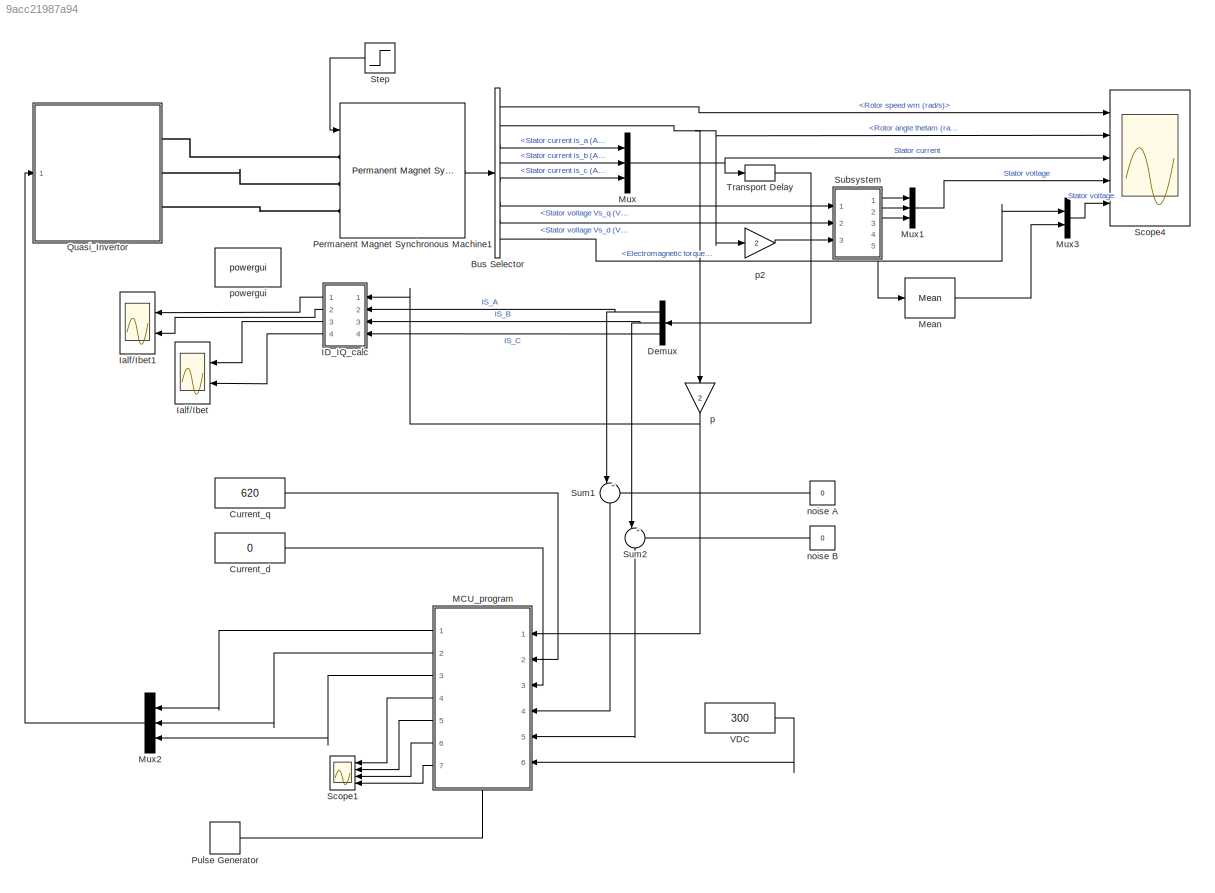
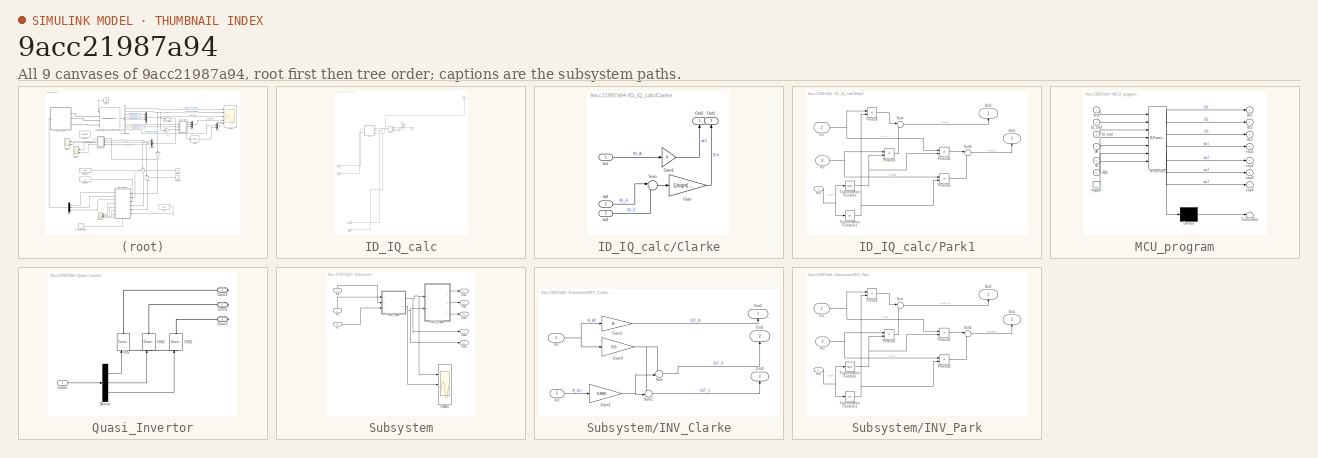
[diagram: thumbnail index - all 9 canvases of the model, root first then tree order]
MODEL slx_9acc21987a94
KIND model
CONFIG AbsTol = auto
CONFIG EnableMultiTasking = on
CONFIG FixedStep = auto
CONFIG MaxStep = 1e-6
CONFIG MinStep = auto
CONFIG RelTol = 5e-4
CONFIG SampleTimeConstraint = Unconstrained
CONFIG SolverName = ode23tb
CONFIG StartTime = 0.0
CONFIG StopTime = 30
BLOCK [BusSelector] Bus Selector
  OutputSignals = Rotor speed wm (rad/s),Rotor angle thetam (rad),Stator current is_a (A),Stator current is_b (A),Stator current is_c (A),Stator voltage Vs_q (V),Stator voltage Vs_d (V),Electromagnetic torque Te (N*m)
  Ports = [1, 8]
BLOCK [Constant] Current_d
  Value = 0
BLOCK [Constant] Current_q
  Value = 620
BLOCK [Demux] Demux
  NameLocation = top
  Outputs = 3
  Ports = [1, 3]
BLOCK [SubSystem] ID_IQ_calc
  NameLocation = top
  Ports = [4, 4]
  RequestExecContextInheritance = off
BLOCK [SubSystem] ID_IQ_calc/Clarke
  Ports = [3, 2]
  RequestExecContextInheritance = off
BLOCK [Gain] ID_IQ_calc/Clarke/Gain
  Gain = 1/sqrt(3)
BLOCK [Gain] ID_IQ_calc/Clarke/Gain1
BLOCK [Inport] ID_IQ_calc/Clarke/In1
  IconDisplay = Signal name
BLOCK [Inport] ID_IQ_calc/Clarke/In2
  IconDisplay = Signal name
  Port = 2
BLOCK [Inport] ID_IQ_calc/Clarke/In3
  IconDisplay = Signal name
  Port = 3
BLOCK [Outport] ID_IQ_calc/Clarke/Out1
  IconDisplay = Signal name
  NameLocation = right
  Port = 2
  VectorParamsAs1DForOutWhenUnconnected = off
BLOCK [Outport] ID_IQ_calc/Clarke/Out2
  IconDisplay = Signal name
  NameLocation = right
  VectorParamsAs1DForOutWhenUnconnected = off
BLOCK [Sum] ID_IQ_calc/Clarke/Sum
  Inputs = |+-
  Ports = [2, 1]
BLOCK [Inport] ID_IQ_calc/In1
  NameLocation = right
BLOCK [Inport] ID_IQ_calc/In2
  NameLocation = right
  Port = 2
BLOCK [Inport] ID_IQ_calc/In3
  NameLocation = right
  Port = 3
BLOCK [Inport] ID_IQ_calc/In4
  NameLocation = right
  Port = 4
BLOCK [Outport] ID_IQ_calc/Out1
  VectorParamsAs1DForOutWhenUnconnected = off
BLOCK [Outport] ID_IQ_calc/Out2
  Port = 2
  VectorParamsAs1DForOutWhenUnconnected = off
BLOCK [Outport] ID_IQ_calc/Out3
  Port = 3
  VectorParamsAs1DForOutWhenUnconnected = off
BLOCK [Outport] ID_IQ_calc/Out4
  Port = 4
  VectorParamsAs1DForOutWhenUnconnected = off
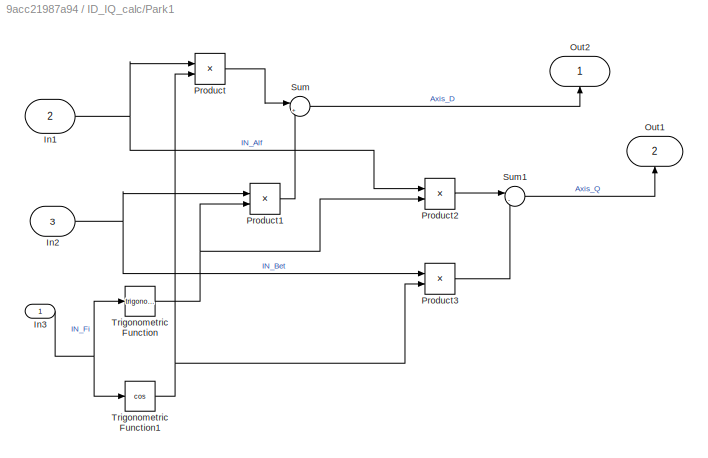
BLOCK [SubSystem] ID_IQ_calc/Park1
  NameLocation = top
  Ports = [3, 2]
  RequestExecContextInheritance = off
BLOCK [Inport] ID_IQ_calc/Park1/In1
  IconDisplay = Signal name
  Port = 2
BLOCK [Inport] ID_IQ_calc/Park1/In2
  IconDisplay = Signal name
  Port = 3
BLOCK [Inport] ID_IQ_calc/Park1/In3
  IconDisplay = Signal name
BLOCK [Outport] ID_IQ_calc/Park1/Out1
  IconDisplay = Signal name
  NameLocation = right
  Port = 2
  VectorParamsAs1DForOutWhenUnconnected = off
BLOCK [Outport] ID_IQ_calc/Park1/Out2
  IconDisplay = Signal name
  NameLocation = right
  VectorParamsAs1DForOutWhenUnconnected = off
BLOCK [Product] ID_IQ_calc/Park1/Product
  Ports = [2, 1]
BLOCK [Product] ID_IQ_calc/Park1/Product1
  Ports = [2, 1]
BLOCK [Product] ID_IQ_calc/Park1/Product2
  Ports = [2, 1]
BLOCK [Product] ID_IQ_calc/Park1/Product3
  Ports = [2, 1]
BLOCK [Sum] ID_IQ_calc/Park1/Sum
  Inputs = |++
  Ports = [2, 1]
BLOCK [Sum] ID_IQ_calc/Park1/Sum1
  Inputs = |-+
  Ports = [2, 1]
BLOCK [Trigonometry] ID_IQ_calc/Park1/Trigonometric Function
  Ports = [1, 1]
BLOCK [Trigonometry] ID_IQ_calc/Park1/Trigonometric Function1
  Operator = cos
  Ports = [1, 1]
BLOCK [Scope] Ialf//Ibet
  Floating = off
  NameLocation = top
  NumInputPorts = 2
  Ports = [2]
  ScopeSpecificationString = Simulink.scopes.TimeScopeBlockCfg('CurrentConfiguration', extmgr.ConfigurationSet(extmgr.Configuration('Core','General UI',true,'FigureColor',[1 1 1]),extmgr.Configuration('Core','Source UI',true),extmgr.Configuration('Sources','WiredSimulink',true,'DataLoggingVariableName','ScopeData1','DataLoggingSaveFormat','StructureWithTime','DataLoggingDecimation','1','DataLoggingDecimateData',true),extmgr.C...<+4326ch>
BLOCK [Scope] Ialf//Ibet1
  Floating = off
  NameLocation = top
  NumInputPorts = 2
  Ports = [2]
  ScopeSpecificationString = Simulink.scopes.TimeScopeBlockCfg('CurrentConfiguration', extmgr.ConfigurationSet(extmgr.Configuration('Core','General UI',true,'FigureColor',[1 1 1]),extmgr.Configuration('Core','Source UI',true),extmgr.Configuration('Sources','WiredSimulink',true,'DataLoggingVariableName','ScopeData1','DataLoggingSaveFormat','StructureWithTime','DataLoggingDecimation','1','DataLoggingDecimateData',true),extmgr.C...<+4329ch>
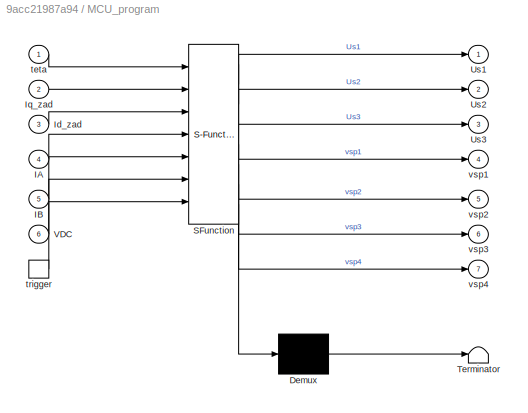
BLOCK [SubSystem] MCU_program
  ErrorFcn = Stateflow.Translate.translate
  NameLocation = top
  PermitHierarchicalResolution = ExplicitOnly
  Ports = [6, 7, 0, 1]
  RequestExecContextInheritance = off
  SFBlockType = MATLAB Function
  TreatAsAtomicUnit = on
BLOCK [Demux] MCU_program/ Demux 
  Outputs = 1
  Ports = [1, 1]
BLOCK [S-Function] MCU_program/ SFunction 
  EnableBusSupport = on
  FunctionName = sf_sfun
  PortCounts = [7 8]
  Ports = [7, 8]
  SFcnIsStateOwnerBlock = off
  SFunctionDeploymentMode = off
  Tag = Stateflow S-Function 3
BLOCK [Terminator] MCU_program/ Terminator 
BLOCK [Inport] MCU_program/IA
  Port = 4
BLOCK [Inport] MCU_program/IB
  Port = 5
BLOCK [Inport] MCU_program/Id_zad
  Port = 3
BLOCK [Inport] MCU_program/Iq_zad
  Port = 2
BLOCK [Outport] MCU_program/Us1
  VectorParamsAs1DForOutWhenUnconnected = off
BLOCK [Outport] MCU_program/Us2
  Port = 2
  VectorParamsAs1DForOutWhenUnconnected = off
BLOCK [Outport] MCU_program/Us3
  Port = 3
  VectorParamsAs1DForOutWhenUnconnected = off
BLOCK [Inport] MCU_program/VDC
  Port = 6
BLOCK [Inport] MCU_program/teta
BLOCK [TriggerPort] MCU_program/trigger
  Ports = [0, 1]
  ShowOutputPort = on
  StatesWhenEnabling = held
  VariantControl = (inherit)
BLOCK [Outport] MCU_program/vsp1
  Port = 4
  VectorParamsAs1DForOutWhenUnconnected = off
BLOCK [Outport] MCU_program/vsp2
  Port = 5
  VectorParamsAs1DForOutWhenUnconnected = off
BLOCK [Outport] MCU_program/vsp3
  Port = 6
  VectorParamsAs1DForOutWhenUnconnected = off
BLOCK [Outport] MCU_program/vsp4
  Port = 7
  VectorParamsAs1DForOutWhenUnconnected = off
BLOCK [Reference] Mean  REF=spsMeanLib/Mean
  Ports = [1, 1]
  SourceBlock = spsMeanLib/Mean
  SourceProductBaseCode = PS
  SourceType = Mean
BLOCK [Mux] Mux
  DisplayOption = bar
  Inputs = 3
  Ports = [3, 1]
BLOCK [Mux] Mux1
  DisplayOption = bar
  Inputs = 3
  Ports = [3, 1]
BLOCK [Mux] Mux2
  DisplayOption = bar
  Inputs = 3
  NameLocation = top
  Ports = [3, 1]
BLOCK [Mux] Mux3
  DisplayOption = bar
  Inputs = 2
  Ports = [2, 1]
BLOCK [Reference] Permanent Magnet Synchronous Machine1  REF=spsPermanentMagnetSynchronousMachineLib/Permanent Magnet
Synchronous Machine
  Ports = [1, 1, 0, 0, 0, 3]
  SourceBlock = spsPermanentMagnetSynchronousMachineLib/Permanent Magnet\nSynchronous Machine
  SourceProductBaseCode = PS
  SourceType = Permanent Magnet Synchronous Machine
BLOCK [DiscretePulseGenerator] Pulse Generator
  Period = 50e-6
  Ports = [0, 1]
  PulseType = Time based
  PulseWidth = 10
BLOCK [SubSystem] Quasi_Invertor
  Ports = [1, 0, 0, 0, 0, 0, 3]
  RequestExecContextInheritance = off
BLOCK [Reference] Quasi_Invertor/CVS  REF=spsControlledVoltageSourceLib/Controlled Voltage Source
  NameLocation = right
  Ports = [1, 0, 0, 0, 0, 1, 1]
  SourceBlock = spsControlledVoltageSourceLib/Controlled Voltage Source
  SourceProductBaseCode = PS
  SourceType = Controlled Voltage Source
BLOCK [Reference] Quasi_Invertor/CVS1  REF=spsControlledVoltageSourceLib/Controlled Voltage Source
  NameLocation = right
  Ports = [1, 0, 0, 0, 0, 1, 1]
  SourceBlock = spsControlledVoltageSourceLib/Controlled Voltage Source
  SourceProductBaseCode = PS
  SourceType = Controlled Voltage Source
BLOCK [Reference] Quasi_Invertor/CVS2  REF=spsControlledVoltageSourceLib/Controlled Voltage Source
  NameLocation = right
  Ports = [1, 0, 0, 0, 0, 1, 1]
  SourceBlock = spsControlledVoltageSourceLib/Controlled Voltage Source
  SourceProductBaseCode = PS
  SourceType = Controlled Voltage Source
BLOCK [PMIOPort] Quasi_Invertor/Conn1
  Side = Right
BLOCK [PMIOPort] Quasi_Invertor/Conn2
  Port = 2
  Side = Right
BLOCK [PMIOPort] Quasi_Invertor/Conn3
  Port = 3
  Side = Right
BLOCK [Demux] Quasi_Invertor/Demux
  Outputs = 3
  Ports = [1, 3]
BLOCK [Inport] Quasi_Invertor/Gates
BLOCK [Scope] Scope1
  Floating = off
  NameLocation = top
  NumInputPorts = 4
  Ports = [4]
  ScopeSpecificationString = Simulink.scopes.TimeScopeBlockCfg('CurrentConfiguration', extmgr.ConfigurationSet(extmgr.Configuration('Core','General UI',true,'FigureColor',[1 1 1]),extmgr.Configuration('Core','Source UI',true),extmgr.Configuration('Sources','WiredSimulink',true,'DataLoggingVariableName','ScopeData1','DataLoggingSaveFormat','StructureWithTime','DataLoggingDecimation','1','DataLoggingDecimateData',true),extmgr.C...<+6403ch>
BLOCK [Scope] Scope4
  Floating = off
  NumInputPorts = 5
  Ports = [5]
  ScopeSpecificationString = Simulink.scopes.TimeScopeBlockCfg('CurrentConfiguration', extmgr.ConfigurationSet(extmgr.Configuration('Core','General UI',true,'FigureColor',[0.247058823529412 0.247058823529412 0.247058823529412]),extmgr.Configuration('Core','Source UI',true),extmgr.Configuration('Sources','WiredSimulink',true,'DataLoggingVariableName','SD2','DataLoggingSaveFormat','StructureWithTime','DataLoggingDecimation','1'...<+12942ch>
BLOCK [Step] Step
  After = 0.07
  Before = 0.02
  NameLocation = top
  SampleTime = 0
  Time = 28
BLOCK [SubSystem] Subsystem
  Ports = [3, 5]
  RequestExecContextInheritance = off
BLOCK [Inport] Subsystem/Fi
  Port = 3
BLOCK [SubSystem] Subsystem/INV_Clarke
  Ports = [2, 3]
  RequestExecContextInheritance = off
BLOCK [Gain] Subsystem/INV_Clarke/Gain1
BLOCK [Gain] Subsystem/INV_Clarke/Gain2
  Gain = 0.866
BLOCK [Gain] Subsystem/INV_Clarke/Gain3
  Gain = 0.5
BLOCK [Inport] Subsystem/INV_Clarke/In1
  IconDisplay = Signal name
BLOCK [Inport] Subsystem/INV_Clarke/In2
  IconDisplay = Signal name
  Port = 2
BLOCK [Outport] Subsystem/INV_Clarke/Out1
  IconDisplay = Signal name
  NameLocation = right
  Port = 2
  VectorParamsAs1DForOutWhenUnconnected = off
BLOCK [Outport] Subsystem/INV_Clarke/Out2
  IconDisplay = Signal name
  NameLocation = right
  VectorParamsAs1DForOutWhenUnconnected = off
BLOCK [Outport] Subsystem/INV_Clarke/Out3
  IconDisplay = Signal name
  NameLocation = right
  Port = 3
  VectorParamsAs1DForOutWhenUnconnected = off
BLOCK [Sum] Subsystem/INV_Clarke/Sum
  Inputs = -+|
  Ports = [2, 1]
BLOCK [Sum] Subsystem/INV_Clarke/Sum1
  Inputs = --|
  Ports = [2, 1]
BLOCK [SubSystem] Subsystem/INV_Park
  Ports = [3, 2]
  RequestExecContextInheritance = off
BLOCK [Inport] Subsystem/INV_Park/In1
  IconDisplay = Signal name
BLOCK [Inport] Subsystem/INV_Park/In2
  IconDisplay = Signal name
  Port = 2
BLOCK [Inport] Subsystem/INV_Park/In3
  IconDisplay = Signal name
  Port = 3
BLOCK [Outport] Subsystem/INV_Park/Out1
  IconDisplay = Signal name
  NameLocation = right
  Port = 2
  VectorParamsAs1DForOutWhenUnconnected = off
BLOCK [Outport] Subsystem/INV_Park/Out2
  IconDisplay = Signal name
  NameLocation = right
  VectorParamsAs1DForOutWhenUnconnected = off
BLOCK [Product] Subsystem/INV_Park/Product
  Ports = [2, 1]
BLOCK [Product] Subsystem/INV_Park/Product1
  Ports = [2, 1]
BLOCK [Product] Subsystem/INV_Park/Product2
  Ports = [2, 1]
BLOCK [Product] Subsystem/INV_Park/Product3
  Ports = [2, 1]
BLOCK [Sum] Subsystem/INV_Park/Sum
  Inputs = |+-
  Ports = [2, 1]
BLOCK [Sum] Subsystem/INV_Park/Sum1
  Inputs = |++
  Ports = [2, 1]
BLOCK [Trigonometry] Subsystem/INV_Park/Trigonometric Function
  Ports = [1, 1]
BLOCK [Trigonometry] Subsystem/INV_Park/Trigonometric Function1
  Operator = cos
  Ports = [1, 1]
BLOCK [Outport] Subsystem/Out1
  VectorParamsAs1DForOutWhenUnconnected = off
BLOCK [Outport] Subsystem/Out2
  Port = 2
  VectorParamsAs1DForOutWhenUnconnected = off
BLOCK [Outport] Subsystem/Out3
  Port = 3
  VectorParamsAs1DForOutWhenUnconnected = off
BLOCK [Outport] Subsystem/Out4
  Port = 4
  VectorParamsAs1DForOutWhenUnconnected = off
BLOCK [Outport] Subsystem/Out5
  Port = 5
  VectorParamsAs1DForOutWhenUnconnected = off
BLOCK [Scope] Subsystem/Scope13
  Floating = off
  NumInputPorts = 3
  Ports = [3]
  ScopeSpecificationString = Simulink.scopes.TimeScopeBlockCfg('CurrentConfiguration', extmgr.ConfigurationSet(extmgr.Configuration('Core','General UI',true,'FigureColor',[1 1 1]),extmgr.Configuration('Core','Source UI',true),extmgr.Configuration('Sources','WiredSimulink',true,'DataLoggingVariableName','ScopeData1','DataLoggingSaveFormat','StructureWithTime','DataLoggingDecimation','1','DataLoggingDecimateData',true),extmgr.C...<+4806ch>
BLOCK [Inport] Subsystem/Vd
  NameLocation = right
  Port = 2
BLOCK [Inport] Subsystem/Vq
  NameLocation = right
BLOCK [Sum] Sum1
  Inputs = |++
  NameLocation = left
  Ports = [2, 1]
BLOCK [Sum] Sum2
  Inputs = |++
  NameLocation = left
  Ports = [2, 1]
BLOCK [TransportDelay] Transport Delay
  DelayTime = 5e-6
  Ports = [1, 1]
BLOCK [Constant] VDC
  Value = 300
BLOCK [Constant] noise A
  NameLocation = top
  Value = 0
BLOCK [Constant] noise B
  NameLocation = top
  Value = 0
BLOCK [Gain] p
  Gain = 2
  NameLocation = right
BLOCK [Gain] p2
  Gain = 2
  NameLocation = top
BLOCK [Reference] powergui  REF=spspowerguiLib/powergui
  Ports = []
  Priority = 1
  SourceBlock = spspowerguiLib/powergui
  SourceProductBaseCode = PS
  SourceType = PSB option menu block
LINE Bus Selector:1 -> Scope4:1
NET Bus Selector:2 -> Scope4:2, p2:1, p:1
LINE Bus Selector:3 -> Mux:1
LINE Bus Selector:4 -> Mux:2
LINE Bus Selector:5 -> Mux:3
LINE Bus Selector:6 -> Subsystem:1
LINE Bus Selector:7 -> Subsystem:2
NET Bus Selector:8 -> Mean:1, Mux3:1
LINE Current_d:1 -> MCU_program:3
LINE Current_q:1 -> MCU_program:2
NET Demux:1 -> ID_IQ_calc:2, Sum1:1
NET Demux:2 -> ID_IQ_calc:3, Sum2:1
LINE Demux:3 -> ID_IQ_calc:4
LINE ID_IQ_calc/Clarke/Gain1:1 -> ID_IQ_calc/Clarke/Out2:1
LINE ID_IQ_calc/Clarke/Gain:1 -> ID_IQ_calc/Clarke/Out1:1
LINE ID_IQ_calc/Clarke/In1:1 -> ID_IQ_calc/Clarke/Gain1:1
LINE ID_IQ_calc/Clarke/In2:1 -> ID_IQ_calc/Clarke/Sum:1
LINE ID_IQ_calc/Clarke/In3:1 -> ID_IQ_calc/Clarke/Sum:2
LINE ID_IQ_calc/Clarke/Sum:1 -> ID_IQ_calc/Clarke/Gain:1
NET ID_IQ_calc/Clarke:1 -> ID_IQ_calc/Out3:1, ID_IQ_calc/Park1:2
NET ID_IQ_calc/Clarke:2 -> ID_IQ_calc/Out4:1, ID_IQ_calc/Park1:3
LINE ID_IQ_calc/In1:1 -> ID_IQ_calc/Park1:1
LINE ID_IQ_calc/In2:1 -> ID_IQ_calc/Clarke:1
LINE ID_IQ_calc/In3:1 -> ID_IQ_calc/Clarke:2
LINE ID_IQ_calc/In4:1 -> ID_IQ_calc/Clarke:3
NET ID_IQ_calc/Park1/In1:1 -> ID_IQ_calc/Park1/Product2:1, ID_IQ_calc/Park1/Product:1
NET ID_IQ_calc/Park1/In2:1 -> ID_IQ_calc/Park1/Product1:1, ID_IQ_calc/Park1/Product3:1
NET ID_IQ_calc/Park1/In3:1 -> ID_IQ_calc/Park1/Trigonometric Function1:1, ID_IQ_calc/Park1/Trigonometric Function:1
LINE ID_IQ_calc/Park1/Product1:1 -> ID_IQ_calc/Park1/Sum:2
LINE ID_IQ_calc/Park1/Product2:1 -> ID_IQ_calc/Park1/Sum1:1
LINE ID_IQ_calc/Park1/Product3:1 -> ID_IQ_calc/Park1/Sum1:2
LINE ID_IQ_calc/Park1/Product:1 -> ID_IQ_calc/Park1/Sum:1
LINE ID_IQ_calc/Park1/Sum1:1 -> ID_IQ_calc/Park1/Out1:1
LINE ID_IQ_calc/Park1/Sum:1 -> ID_IQ_calc/Park1/Out2:1
NET ID_IQ_calc/Park1/Trigonometric Function1:1 -> ID_IQ_calc/Park1/Product3:2, ID_IQ_calc/Park1/Product:2
NET ID_IQ_calc/Park1/Trigonometric Function:1 -> ID_IQ_calc/Park1/Product1:2, ID_IQ_calc/Park1/Product2:2
LINE ID_IQ_calc/Park1:1 -> ID_IQ_calc/Out1:1
LINE ID_IQ_calc/Park1:2 -> ID_IQ_calc/Out2:1
LINE ID_IQ_calc:1 -> Ialf//Ibet1:1
LINE ID_IQ_calc:2 -> Ialf//Ibet1:2
LINE ID_IQ_calc:3 -> Ialf//Ibet:1
LINE ID_IQ_calc:4 -> Ialf//Ibet:2
LINE MCU_program:1 -> Mux2:1
LINE MCU_program:2 -> Mux2:2
LINE MCU_program:3 -> Mux2:3
LINE MCU_program:4 -> Scope1:1
LINE MCU_program:5 -> Scope1:2
LINE MCU_program:6 -> Scope1:3
LINE MCU_program:7 -> Scope1:4
LINE Mean:1 -> Mux3:2
LINE Mux1:1 -> Scope4:4
LINE Mux2:1 -> Quasi_Invertor:1
LINE Mux3:1 -> Scope4:5
NET Mux:1 -> Scope4:3, Transport Delay:1
LINE Permanent Magnet Synchronous Machine1:1 -> Bus Selector:1
LINE Pulse Generator:1 -> MCU_program:trigger
LINE Quasi_Invertor/Demux:1 -> Quasi_Invertor/CVS:1
LINE Quasi_Invertor/Demux:2 -> Quasi_Invertor/CVS1:1
LINE Quasi_Invertor/Demux:3 -> Quasi_Invertor/CVS2:1
LINE Quasi_Invertor/Gates:1 -> Quasi_Invertor/Demux:1
LINE Step:1 -> Permanent Magnet Synchronous Machine1:1
LINE Subsystem/Fi:1 -> Subsystem/INV_Park:3
LINE Subsystem/INV_Clarke/Gain1:1 -> Subsystem/INV_Clarke/Out2:1
NET Subsystem/INV_Clarke/Gain2:1 -> Subsystem/INV_Clarke/Sum1:2, Subsystem/INV_Clarke/Sum:2
NET Subsystem/INV_Clarke/Gain3:1 -> Subsystem/INV_Clarke/Sum1:1, Subsystem/INV_Clarke/Sum:1
NET Subsystem/INV_Clarke/In1:1 -> Subsystem/INV_Clarke/Gain1:1, Subsystem/INV_Clarke/Gain3:1
LINE Subsystem/INV_Clarke/In2:1 -> Subsystem/INV_Clarke/Gain2:1
LINE Subsystem/INV_Clarke/Sum1:1 -> Subsystem/INV_Clarke/Out3:1
LINE Subsystem/INV_Clarke/Sum:1 -> Subsystem/INV_Clarke/Out1:1
LINE Subsystem/INV_Clarke:1 -> Subsystem/Out1:1
LINE Subsystem/INV_Clarke:2 -> Subsystem/Out2:1
LINE Subsystem/INV_Clarke:3 -> Subsystem/Out3:1
NET Subsystem/INV_Park/In1:1 -> Subsystem/INV_Park/Product2:1, Subsystem/INV_Park/Product:1
NET Subsystem/INV_Park/In2:1 -> Subsystem/INV_Park/Product1:1, Subsystem/INV_Park/Product3:1
NET Subsystem/INV_Park/In3:1 -> Subsystem/INV_Park/Trigonometric Function1:1, Subsystem/INV_Park/Trigonometric Function:1
LINE Subsystem/INV_Park/Product1:1 -> Subsystem/INV_Park/Sum:2
LINE Subsystem/INV_Park/Product2:1 -> Subsystem/INV_Park/Sum1:1
LINE Subsystem/INV_Park/Product3:1 -> Subsystem/INV_Park/Sum1:2
LINE Subsystem/INV_Park/Product:1 -> Subsystem/INV_Park/Sum:1
LINE Subsystem/INV_Park/Sum1:1 -> Subsystem/INV_Park/Out1:1
LINE Subsystem/INV_Park/Sum:1 -> Subsystem/INV_Park/Out2:1
NET Subsystem/INV_Park/Trigonometric Function1:1 -> Subsystem/INV_Park/Product3:2, Subsystem/INV_Park/Product:2
NET Subsystem/INV_Park/Trigonometric Function:1 -> Subsystem/INV_Park/Product1:2, Subsystem/INV_Park/Product2:2
NET Subsystem/INV_Park:1 -> Subsystem/INV_Clarke:1, Subsystem/Out4:1, Subsystem/Scope13:1
NET Subsystem/INV_Park:2 -> Subsystem/INV_Clarke:2, Subsystem/Out5:1, Subsystem/Scope13:2
LINE Subsystem/Vd:1 -> Subsystem/INV_Park:1
LINE Subsystem/Vq:1 -> Subsystem/INV_Park:2
LINE Subsystem:1 -> Mux1:1
LINE Subsystem:2 -> Mux1:2
LINE Subsystem:3 -> Mux1:3
LINE Sum1:1 -> MCU_program:4
LINE Sum2:1 -> MCU_program:5
LINE Transport Delay:1 -> Demux:1
LINE VDC:1 -> MCU_program:6
LINE noise A:1 -> Sum1:2
LINE noise B:1 -> Sum2:2
LINE p2:1 -> Subsystem:3
NET p:1 -> ID_IQ_calc:1, MCU_program:1
PLINE Permanent Magnet Synchronous Machine1:LConn1 -- Quasi_Invertor:RConn1
PLINE Permanent Magnet Synchronous Machine1:LConn2 -- Quasi_Invertor:RConn2
PLINE Permanent Magnet Synchronous Machine1:LConn3 -- Quasi_Invertor:RConn3
PNET net1: Quasi_Invertor/CVS1:LConn1 -- Quasi_Invertor/CVS2:LConn1 -- Quasi_Invertor/CVS:LConn1
PLINE Quasi_Invertor/CVS1:RConn1 -- Quasi_Invertor/Conn2:RConn1
PLINE Quasi_Invertor/CVS2:RConn1 -- Quasi_Invertor/Conn3:RConn1
PLINE Quasi_Invertor/CVS:RConn1 -- Quasi_Invertor/Conn1:RConn1
note: NET lines group one-source signal fan-out (src -> all destinations, sorted); 1:1 wires keep LINE; PNET lines group multi-terminal physical nets as a canonical sorted terminal list (undirected conserving connections); 2-terminal nets keep the pairwise PLINE form
CHART MCU_program states=1 transitions=1
  STATE_LABEL 'eML_blk_kernel()'
  STATE_LABEL 'SCRIPT:\nfunction [Us1,Us2,Us3,vsp1,vsp2,vsp3,vsp4] = fcn(teta,Iq_zad,Id_zad,IA,IB,VDC)\n%время 1/2 ШИМ периода\ndt=100e-6;\n\nkuqp=1;\nkuqi=25;\n\nkudp=1;\nkudi=25;\n\n\n\n\n\npersistent wint;\nif isempty(wint)\n    wint=0;\nend \npersistent Uqint;\nif isempty(Uqint)\n    Uqint=0;\nend \npersistent Udint;\nif isempty(Udint)\n    Udint=0;\nend \n\n\n%Преобразование Кларка\nIalfa=IA;\nIbeta=(2*IB+IA)/sqrt(3);\nI_ampl=sqrt(Ialfa^2...<+1302ch>'
CHART  states=0 transitions=0
